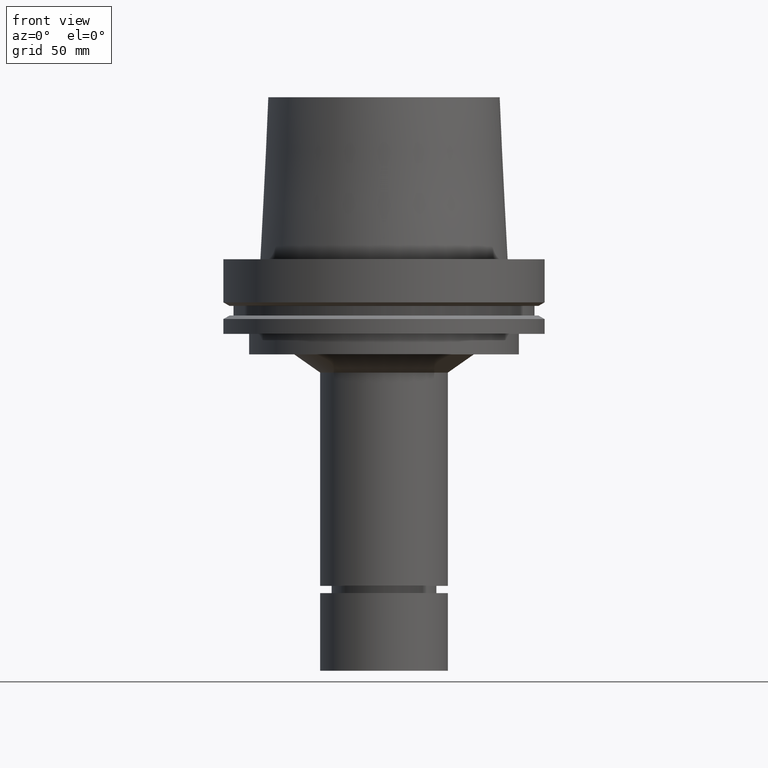
[diagram: clean part render]
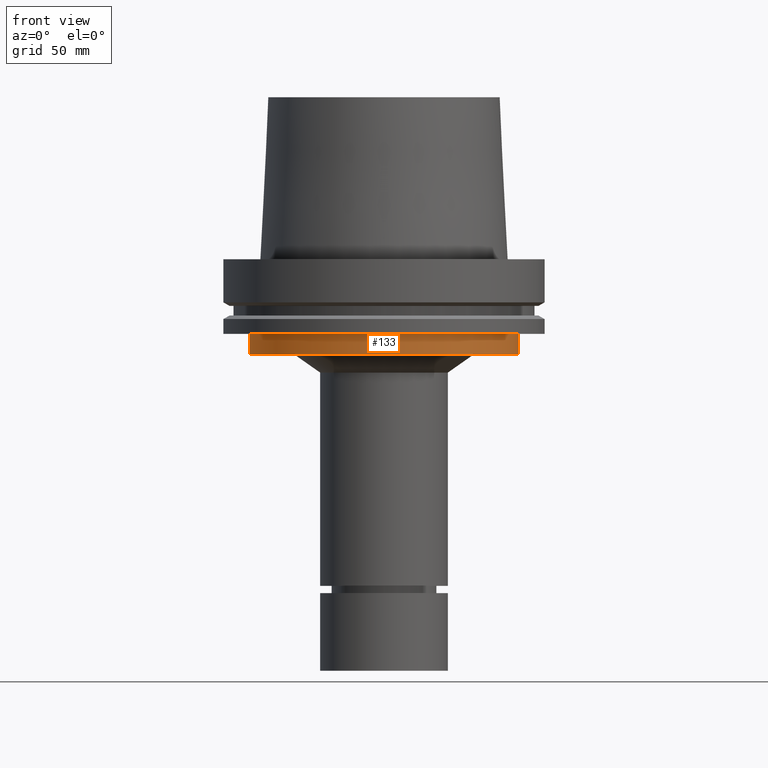
[diagram: same view with one face highlighted and labeled with its STEP entity id]
A machine part, front view. The second image highlights one B-rep face of the part: STEP entity #133.
In plain terms, the highlighted cylindrical surface (bore or boss wall) has radius 52.5 mm, axis along (0, -0, -1).
Its self-contained STEP definition (entity closure, byte-faithful):
#107=EDGE_CURVE('Unnamed[1]',#261,#261,#262,.T.);
#133=ADVANCED_FACE('Unnamed[1]',(#300,#301),#302,.T.);
#199=EDGE_CURVE('Unnamed[1]',#404,#404,#405,.T.);
#261=VERTEX_POINT('',#470);
#262=CIRCLE('',#471,52.4999999999999);
#300=FACE_BOUND('',#518,.T.);
#301=FACE_BOUND('',#519,.T.);
#302=CYLINDRICAL_SURFACE('',#520,52.5);
#404=VERTEX_POINT('',#648);
#405=CIRCLE('',#649,52.5);
#470=CARTESIAN_POINT('',(2.26559657842261E-015,52.4999999999999,-37.0000000000001));
#471=AXIS2_PLACEMENT_3D('',#697,#698,#699);
#518=EDGE_LOOP('',(#738));
#519=EDGE_LOOP('',(#739));
#520=AXIS2_PLACEMENT_3D('',#740,#741,#742);
#648=CARTESIAN_POINT('',(1.77573785876367E-015,52.5,-29.0000000000001));
#649=AXIS2_PLACEMENT_3D('',#857,#858,#859);
#697=CARTESIAN_POINT('',(2.26559657842261E-015,-2.11241639860118E-014,-37.0000000000001));
#698=DIRECTION('',(6.12323399573677E-017,-7.02088891513837E-016,-1.0));
#699=DIRECTION('',(3.81633929546977E-032,1.0,-7.02088891513837E-016));
#738=ORIENTED_EDGE('',*,*,#107,.F.);
#739=ORIENTED_EDGE('',*,*,#199,.T.);
#740=CARTESIAN_POINT('',(2.02066721859314E-015,-1.83158084199565E-014,-33.0000000000001));
#741=DIRECTION('',(6.12323399573677E-017,-7.02088891513837E-016,-1.0));
#742=DIRECTION('',(3.81633929546977E-032,1.0,-7.02088891513837E-016));
#857=CARTESIAN_POINT('',(1.77573785876367E-015,-1.55074528539011E-014,-29.0000000000001));
#858=DIRECTION('',(6.12323399573677E-017,-7.02088891513837E-016,-1.0));
#859=DIRECTION('',(3.81633929546977E-032,1.0,-7.02088891513837E-016));